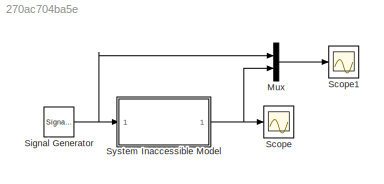
MODEL slx_270ac704ba5e
KIND model
CONFIG AbsTol = auto
CONFIG EnableMultiTasking = off
CONFIG FixedStep = auto
CONFIG MaxStep = auto
CONFIG MinStep = auto
CONFIG RelTol = 1e-7
CONFIG SampleTimeConstraint = Unconstrained
CONFIG Solver = VariableStepAuto
CONFIG SolverName = VariableStepAuto
CONFIG StartTime = 0.0
CONFIG StopTime = 50000
BLOCK [Mux] Mux
  DisplayOption = bar
  Inputs = 2
  Ports = [2, 1]
BLOCK [Scope] Scope
  Floating = off
  NumInputPorts = 1
  Ports = [1]
  ScopeSpecificationString = Simulink.scopes.TimeScopeBlockCfg('CurrentConfiguration', extmgr.ConfigurationSet(extmgr.Configuration('Core','General UI',true),extmgr.Configuration('Core','Source UI',true),extmgr.Configuration('Sources','WiredSimulink',true),extmgr.Configuration('Visuals','Time Domain',true,'SerializedDisplays',{struct('MinYLimReal','-3.21564','MaxYLimReal','2.25067','YLabelReal','','MinYLimMag','0.00000','MaxY...<+1745ch>
BLOCK [Scope] Scope1
  Floating = off
  NumInputPorts = 1
  Ports = [1]
  ScopeSpecificationString = Simulink.scopes.TimeScopeBlockCfg('CurrentConfiguration', extmgr.ConfigurationSet(extmgr.Configuration('Core','General UI',true),extmgr.Configuration('Core','Source UI',true),extmgr.Configuration('Sources','WiredSimulink',true,'DataLoggingVariableName','ScopeData1'),extmgr.Configuration('Visuals','Time Domain',true,'SerializedDisplays',{struct('MinYLimReal','-0.00022','MaxYLimReal','0.00017','YLab...<+1842ch>
BLOCK [SignalGenerator] Signal Generator
  Ports = [0, 1]
  Units = rad/sec
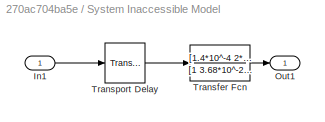
BLOCK [SubSystem] System Inaccessible Model
  Ports = [1, 1]
  RequestExecContextInheritance = off
BLOCK [Inport] System Inaccessible Model/In1
  IconDisplay = Port number
BLOCK [Outport] System Inaccessible Model/Out1
  IconDisplay = Port number
BLOCK [TransferFcn] System Inaccessible Model/Transfer Fcn
  Denominator = [1 3.68*10^-2 2.35752*10^-4 8.2*10^-8 5.0713*10^-12]
  Numerator = [1.4*10^-4 2*10^-7 7.56*10^-12]
BLOCK [TransportDelay] System Inaccessible Model/Transport Delay
  DelayTime = 8.5
  Ports = [1, 1]
LINE Mux:1 -> Scope1:1
NET Signal Generator:1 -> Mux:1, System Inaccessible Model:1
LINE System Inaccessible Model/In1:1 -> System Inaccessible Model/Transport Delay:1
LINE System Inaccessible Model/Transfer Fcn:1 -> System Inaccessible Model/Out1:1
LINE System Inaccessible Model/Transport Delay:1 -> System Inaccessible Model/Transfer Fcn:1
NET System Inaccessible Model:1 -> Mux:2, Scope:1
note: NET lines group one-source signal fan-out (src -> all destinations, sorted); 1:1 wires keep LINE
